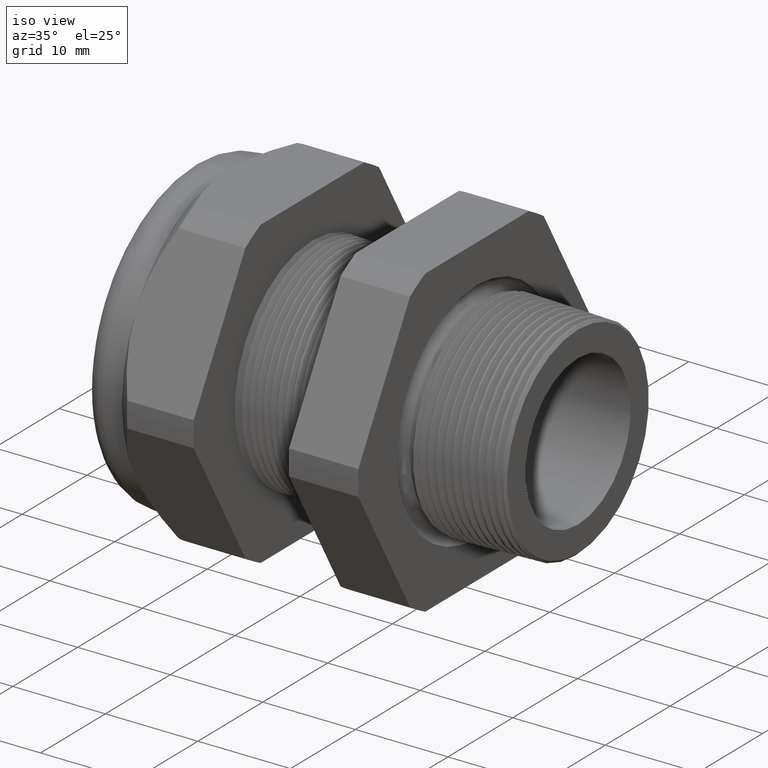
[diagram: clean part render]
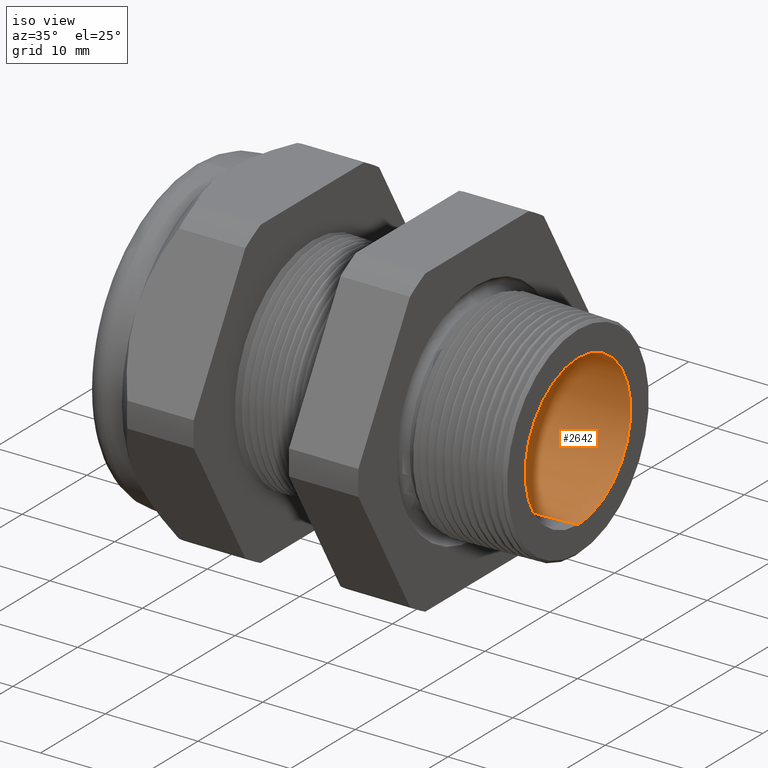
[diagram: same view with one face highlighted and labeled with its STEP entity id]
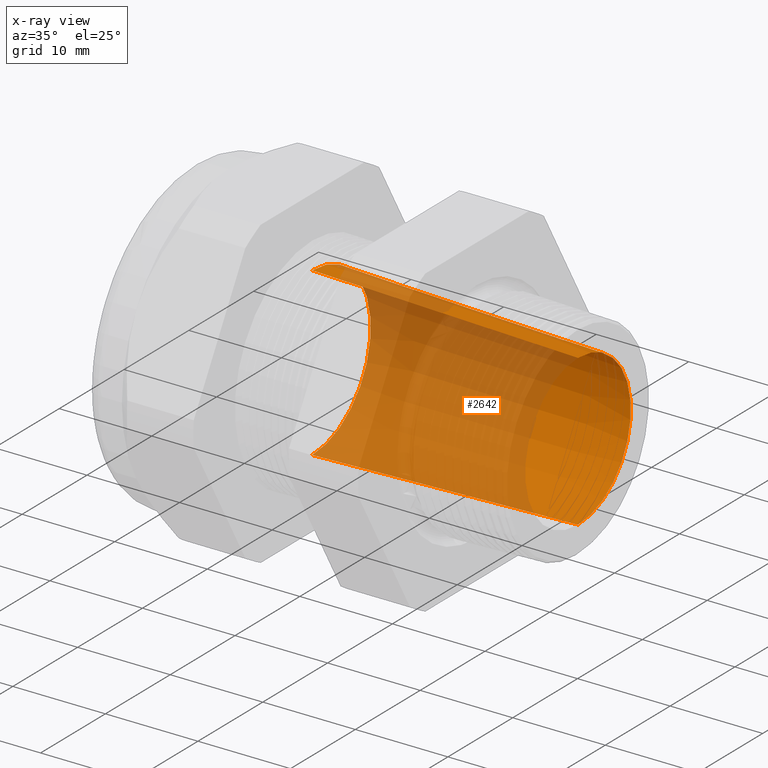
[diagram: x-ray of the same camera — body ghosted, the highlighted face saturated]
A machine part, iso view. The second image highlights one B-rep face of the part: STEP entity #2642.
The next image is the same camera in x-ray: the body ghosted, the highlighted face saturated — about 69% of this face is hidden behind the body in this view.
In plain terms, the highlighted conical surface has half-angle 1.753 deg.
Its self-contained STEP definition (entity closure, byte-faithful):
#149 = DIRECTION ( 'NONE',  ( 0.0000000000000000000, 0.0000000000000000000, -1.000000000000000000 ) ) ;
#150 = DIRECTION ( 'NONE',  ( 1.000000000000000000, 0.0000000000000000000, 0.0000000000000000000 ) ) ;
#151 = CARTESIAN_POINT ( 'NONE',  ( 0.1200000000000000200, 0.0000000000000000000, 0.0000000000000000000 ) ) ;
#152 = AXIS2_PLACEMENT_3D ( 'NONE', #151, #150, #149 ) ;
#153 = CIRCLE ( 'NONE', #152, 0.3204016610924743100 ) ;
#181 = DIRECTION ( 'NONE',  ( 0.0000000000000000000, 0.0000000000000000000, -1.000000000000000000 ) ) ;
#182 = DIRECTION ( 'NONE',  ( 1.000000000000000000, 0.0000000000000000000, 0.0000000000000000000 ) ) ;
#183 = AXIS2_PLACEMENT_3D ( 'NONE', #190, #182, #181 ) ;
#184 = CIRCLE ( 'NONE', #183, 0.3549999999999999800 ) ;
#185 = FACE_OUTER_BOUND ( 'NONE', #2643, .T. ) ;
#190 = CARTESIAN_POINT ( 'NONE',  ( -1.010314960629921100, 0.0000000000000000000, 0.0000000000000000000 ) ) ;
#239 = DIRECTION ( 'NONE',  ( 0.0000000000000000000, 0.0000000000000000000, 1.000000000000000000 ) ) ;
#240 = DIRECTION ( 'NONE',  ( -1.000000000000000000, 0.0000000000000000000, 0.0000000000000000000 ) ) ;
#241 = CARTESIAN_POINT ( 'NONE',  ( -1.010314960629921100, 0.0000000000000000000, 0.0000000000000000000 ) ) ;
#242 = AXIS2_PLACEMENT_3D ( 'NONE', #241, #240, #239 ) ;
#244 = CONICAL_SURFACE ( 'NONE', #242, 0.3549999999999999800, 0.03059991300296905500 ) ;
#1030 = CARTESIAN_POINT ( 'NONE',  ( 0.1200000000000000200, 0.0000000000000000000, 0.3204016610924743100 ) ) ;
#1061 = CARTESIAN_POINT ( 'NONE',  ( 0.1200000000000000200, 4.135642411978520400E-017, -0.3204016610924743100 ) ) ;
#1094 = DIRECTION ( 'NONE',  ( -0.9995318591926351000, 0.0000000000000000000, 0.03059513783126741000 ) ) ;
#1095 = VECTOR ( 'NONE', #1094, 39.37007874015748900 ) ;
#1096 = CARTESIAN_POINT ( 'NONE',  ( -1.010314960629921100, 0.0000000000000000000, 0.3549999999999999800 ) ) ;
#1097 = LINE ( 'NONE', #1096, #1095 ) ;
#1648 = VERTEX_POINT ( 'NONE', #3904 ) ;
#1660 = VERTEX_POINT ( 'NONE', #3946 ) ;
#1673 = EDGE_CURVE ( 'NONE', #5742, #1660, #3921, .T. ) ;
#2619 = ORIENTED_EDGE ( 'NONE', *, *, #1673, .F. ) ;
#2620 = ORIENTED_EDGE ( 'NONE', *, *, #2621, .T. ) ;
#2621 = EDGE_CURVE ( 'NONE', #5742, #5726, #153, .T. ) ;
#2622 = ORIENTED_EDGE ( 'NONE', *, *, #5757, .T. ) ;
#2623 = ORIENTED_EDGE ( 'NONE', *, *, #2641, .F. ) ;
#2641 = EDGE_CURVE ( 'NONE', #1660, #1648, #184, .T. ) ;
#2642 = ADVANCED_FACE ( 'NONE', ( #185 ), #244, .F. ) ;
#2643 = EDGE_LOOP ( 'NONE', ( #2619, #2620, #2622, #2623 ) ) ;
#3904 = CARTESIAN_POINT ( 'NONE',  ( -1.010314960629921100, 4.347496136973103500E-017, 0.3549999999999999800 ) ) ;
#3918 = DIRECTION ( 'NONE',  ( -0.9995318591926351000, 3.746823761453372400E-018, -0.03059513783126741000 ) ) ;
#3919 = VECTOR ( 'NONE', #3918, 39.37007874015748900 ) ;
#3920 = CARTESIAN_POINT ( 'NONE',  ( -1.010314960629921100, 4.347496136973103500E-017, -0.3549999999999999800 ) ) ;
#3921 = LINE ( 'NONE', #3920, #3919 ) ;
#3946 = CARTESIAN_POINT ( 'NONE',  ( -1.010314960629921100, 0.0000000000000000000, -0.3549999999999999800 ) ) ;
#5726 = VERTEX_POINT ( 'NONE', #1030 ) ;
#5742 = VERTEX_POINT ( 'NONE', #1061 ) ;
#5757 = EDGE_CURVE ( 'NONE', #5726, #1648, #1097, .T. ) ;